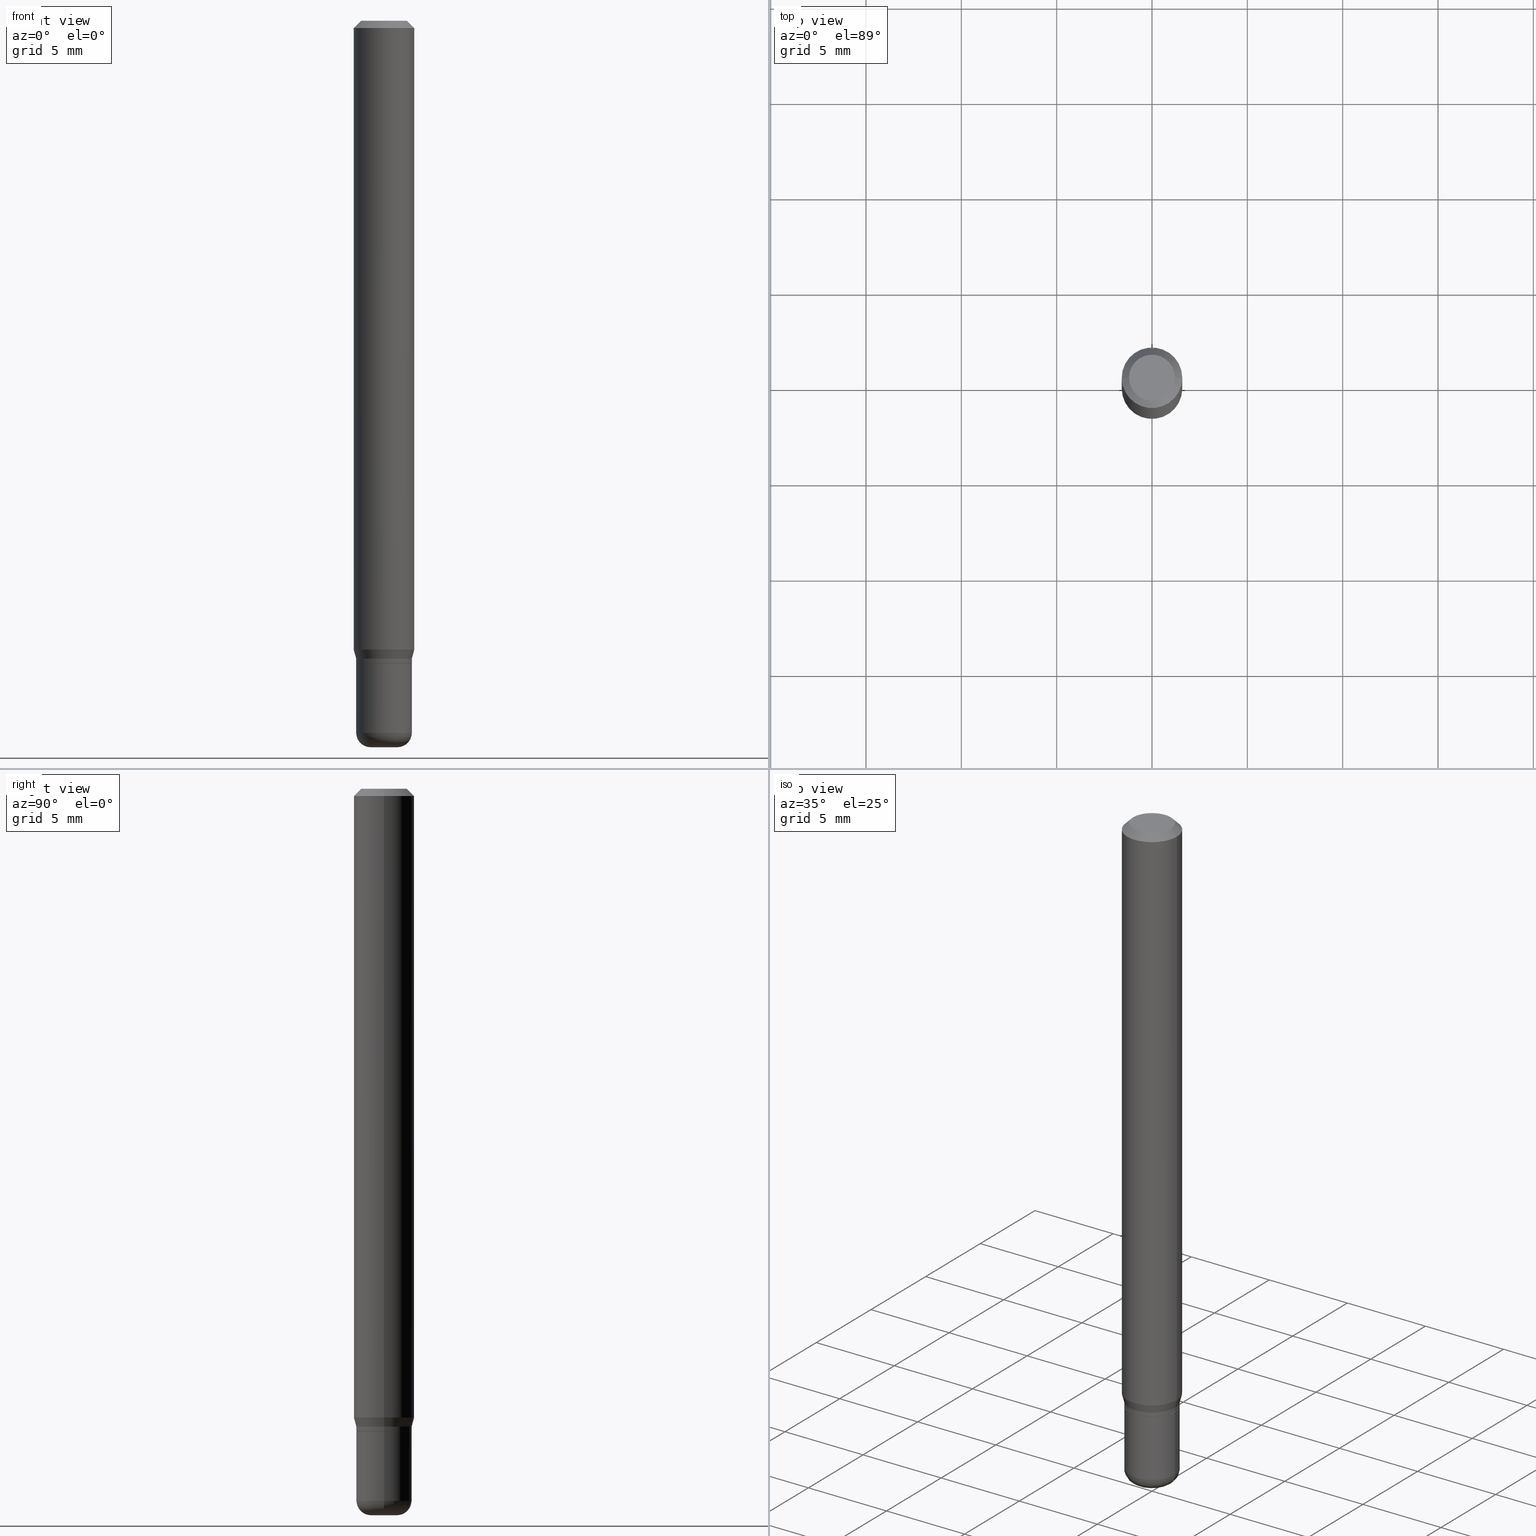
[diagram: canonical four-view strip — front | top / right | iso, engineering-drawing reading convention]
A machine part, canonical four-view strip (front | top / right | iso — engineering-drawing reading convention). The complete STEP part file that produces these views, byte-faithful:
ISO-10303-21;
HEADER;
FILE_DESCRIPTION (( 'STEP AP203' ),
    '1' );
FILE_NAME ('09114.STEP',
    '2024-02-29T22:16:57',
    ( '' ),
    ( '' ),
    'SwSTEP 2.0',
    'SolidWorks 2023',
    '' );
FILE_SCHEMA (( 'CONFIG_CONTROL_DESIGN' ));
ENDSEC;

DATA;
#1 = ORIENTED_EDGE ( 'NONE', *, *, #362, .T. ) ;
#2 = DIRECTION ( 'NONE',  ( -2.445468806185136597E-29, 3.491481338843145583E-15, 1.000000000000000000 ) ) ;
#3 = CALENDAR_DATE ( 2024, 29, 2 ) ;
#4 = LINE ( 'NONE', #340, #284 ) ;
#5 = APPROVAL ( #351, 'UNSPECIFIED' ) ;
#6 = CONICAL_SURFACE ( 'NONE', #444, 0.06250000000000000000, 0.7853981633974488341 ) ;
#7 = EDGE_LOOP ( 'NONE', ( #383, #484, #134, #10 ) ) ;
#8 = PERSON_AND_ORGANIZATION ( #400, #135 ) ;
#9 = DIRECTION ( 'NONE',  ( -2.438088387897960049E-29, 3.491481338843145188E-15, 1.000000000000000000 ) ) ;
#10 = ORIENTED_EDGE ( 'NONE', *, *, #172, .F. ) ;
#11 = AXIS2_PLACEMENT_3D ( 'NONE', #279, #102, #274 ) ;
#12 = ADVANCED_FACE ( 'NONE', ( #344 ), #127, .T. ) ;
#13 = EDGE_CURVE ( 'NONE', #387, #313, #47, .T. ) ;
#14 = CONICAL_SURFACE ( 'NONE', #230, 0.05700000000000005757, 0.7853981633975507526 ) ;
#15 = DIRECTION ( 'NONE',  ( 1.000000000000000000, -6.982962677686274599E-15, 0.000000000000000000 ) ) ;
#16 = ADVANCED_FACE ( 'NONE', ( #124 ), #6, .T. ) ;
#17 = APPLICATION_PROTOCOL_DEFINITION ( 'international standard', 'config_control_design', 1994, #471 ) ;
#18 = DIRECTION ( 'NONE',  ( -2.445468806185136597E-29, 3.491481338843145583E-15, 1.000000000000000000 ) ) ;
#19 = DIRECTION ( 'NONE',  ( 2.445468806185136597E-29, -3.491481338843145583E-15, -1.000000000000000000 ) ) ;
#20 = ADVANCED_BREP_SHAPE_REPRESENTATION ( '09114', ( #225, #243, #501 ), #83 ) ;
#21 = VERTEX_POINT ( 'NONE', #300 ) ;
#22 = PERSON_AND_ORGANIZATION ( #400, #135 ) ;
#23 = CONICAL_SURFACE ( 'NONE', #118, 0.05750000000000008576, 0.2617993877991475760 ) ;
#24 = CONICAL_SURFACE ( 'NONE', #270, 0.05750000000000008576, 0.2617993877991475760 ) ;
#25 = CARTESIAN_POINT ( 'NONE',  ( 0.06250000000000000000, -4.811533449433669144E-16, -0.01499999999999970281 ) ) ;
#26 = EDGE_LOOP ( 'NONE', ( #138, #258, #86, #394 ) ) ;
#27 = DIRECTION ( 'NONE',  ( 1.000000000000000000, -6.982962677686276966E-15, 0.000000000000000000 ) ) ;
#28 = DIRECTION ( 'NONE',  ( 1.000000000000000000, -6.982962677686258822E-15, 4.883557194083110098E-29 ) ) ;
#29 = VERTEX_POINT ( 'NONE', #335 ) ;
#30 = DIRECTION ( 'NONE',  ( 1.000000000000000000, -6.982962677686272233E-15, 0.000000000000000000 ) ) ;
#31 = CARTESIAN_POINT ( 'NONE',  ( 0.000000000000000000, 0.000000000000000000, 0.000000000000000000 ) ) ;
#32 = EDGE_CURVE ( 'NONE', #313, #429, #454, .T. ) ;
#33 = CIRCLE ( 'NONE', #319, 0.04750000000000000749 ) ;
#34 = LINE ( 'NONE', #103, #242 ) ;
#35 = DATE_AND_TIME ( #3, #490 ) ;
#36 = VERTEX_POINT ( 'NONE', #285 ) ;
#37 = DIRECTION ( 'NONE',  ( 0.2588190451025189631, 1.565188264969641295E-15, 0.9659258262890687563 ) ) ;
#38 = ORIENTED_EDGE ( 'NONE', *, *, #482, .T. ) ;
#39 = APPROVAL_PERSON_ORGANIZATION ( #116, #237, #483 ) ;
#40 = CARTESIAN_POINT ( 'NONE',  ( 3.668203209277706016E-29, -5.237222008264719754E-15, -1.500000000000000444 ) ) ;
#41 = CLOSED_SHELL ( 'NONE', ( #178, #50, #409, #295, #447, #404 ) ) ;
#42 = DIRECTION ( 'NONE',  ( -0.7071067811866199593, 7.493145998870616062E-15, 0.7071067811864750752 ) ) ;
#43 = CARTESIAN_POINT ( 'NONE',  ( 0.000000000000000000, 0.000000000000000000, 0.000000000000000000 ) ) ;
#44 = DIRECTION ( 'NONE',  ( 1.000000000000000000, -6.982962677686266711E-15, 0.000000000000000000 ) ) ;
#45 = CARTESIAN_POINT ( 'NONE',  ( -0.05750000000000005801, 4.085620730620580191E-16, -2.828387676896573865E-30 ) ) ;
#46 = PERSON_AND_ORGANIZATION_ROLE ( 'design_supplier' ) ;
#47 = LINE ( 'NONE', #81, #220 ) ;
#48 = CARTESIAN_POINT ( 'NONE',  ( -0.06250000000000000000, -1.848661397443869877E-15, -0.01499999999999970281 ) ) ;
#49 = CIRCLE ( 'NONE', #11, 0.05750000000000000250 ) ;
#50 = ADVANCED_FACE ( 'NONE', ( #329 ), #234, .T. ) ;
#51 = ORIENTED_EDGE ( 'NONE', *, *, #208, .F. ) ;
#52 = DIRECTION ( 'NONE',  ( 2.438088387897960049E-29, -3.491481338843145188E-15, -1.000000000000000000 ) ) ;
#53 = DIRECTION ( 'NONE',  ( -2.445468806185136597E-29, 3.491481338843145583E-15, 1.000000000000000000 ) ) ;
#54 = LOCAL_TIME ( 17, 16, 57.00000000000000000, #426 ) ;
#55 = AXIS2_PLACEMENT_3D ( 'NONE', #406, #190, #30 ) ;
#56 = DIRECTION ( 'NONE',  ( -2.445468806185136597E-29, 3.491481338843145583E-15, 1.000000000000000000 ) ) ;
#57 = VERTEX_POINT ( 'NONE', #372 ) ;
#58 = PERSON_AND_ORGANIZATION ( #400, #135 ) ;
#59 = PRODUCT ( '09114', '09114', '', ( #256 ) ) ;
#60 = EDGE_LOOP ( 'NONE', ( #402, #141, #468, #263 ) ) ;
#61 = AXIS2_PLACEMENT_3D ( 'NONE', #361, #321, #148 ) ;
#62 = CARTESIAN_POINT ( 'NONE',  ( 0.05750000000000005801, -4.015203539669607599E-16, 2.803801646082666094E-30 ) ) ;
#63 = EDGE_CURVE ( 'NONE', #420, #277, #449, .T. ) ;
#64 = ORIENTED_EDGE ( 'NONE', *, *, #213, .F. ) ;
#65 = EDGE_CURVE ( 'NONE', #219, #427, #149, .T. ) ;
#66 = EDGE_LOOP ( 'NONE', ( #466, #107, #425, #463 ) ) ;
#67 = CARTESIAN_POINT ( 'NONE',  ( 3.220682417745826436E-29, -4.598280923256424205E-15, -1.317000000000000393 ) ) ;
#68 = TOROIDAL_SURFACE ( 'NONE', #61, 0.02750000000000000014, 0.03000000000000011685 ) ;
#69 = VERTEX_POINT ( 'NONE', #231 ) ;
#70 = CARTESIAN_POINT ( 'NONE',  ( -6.680649051745406845E-45, 9.538196290434862081E-31, 2.731847993664263218E-16 ) ) ;
#71 = ORIENTED_EDGE ( 'NONE', *, *, #368, .T. ) ;
#72 = DIRECTION ( 'NONE',  ( -2.445468806185136597E-29, 3.491481338843145583E-15, 1.000000000000000000 ) ) ;
#73 = DIRECTION ( 'NONE',  ( -2.445468806185136597E-29, 3.491481338843145583E-15, 1.000000000000000000 ) ) ;
#74 = VERTEX_POINT ( 'NONE', #173 ) ;
#75 = CIRCLE ( 'NONE', #180, 0.05750000000000012046 ) ;
#76 = COORDINATED_UNIVERSAL_TIME_OFFSET ( 5, 0, .BEHIND. ) ;
#77 = DIRECTION ( 'NONE',  ( 1.000000000000000000, -6.982962677686263555E-15, 0.000000000000000000 ) ) ;
#78 = DIRECTION ( 'NONE',  ( -2.445468806185136597E-29, 3.491481338843145583E-15, 1.000000000000000000 ) ) ;
#79 =( LENGTH_UNIT ( ) NAMED_UNIT ( * ) SI_UNIT ( $, .METRE. ) );
#80 = CARTESIAN_POINT ( 'NONE',  ( 3.175049348580787854E-29, -4.533128994505219090E-15, -1.298339745962156178 ) ) ;
#81 = CARTESIAN_POINT ( 'NONE',  ( 0.05700000000000005757, -5.031224609272972078E-15, -1.327000000000000179 ) ) ;
#82 = CARTESIAN_POINT ( 'NONE',  ( 0.06250000000000000000, -4.969564161860609971E-15, -1.298339745962156178 ) ) ;
#83 =( GEOMETRIC_REPRESENTATION_CONTEXT ( 3 ) GLOBAL_UNCERTAINTY_ASSIGNED_CONTEXT ( ( #416 ) ) GLOBAL_UNIT_ASSIGNED_CONTEXT ( ( #122, #336, #410 ) ) REPRESENTATION_CONTEXT ( 'NONE', 'WORKASPACE' ) );
#84 = CC_DESIGN_DATE_AND_TIME_ASSIGNMENT ( #437, #269, ( #287 ) ) ;
#85 = PERSON_AND_ORGANIZATION ( #400, #135 ) ;
#86 = ORIENTED_EDGE ( 'NONE', *, *, #32, .F. ) ;
#87 = CARTESIAN_POINT ( 'NONE',  ( 4.015203539669927580E-16, 0.05749999999999536732, -1.327000000000000401 ) ) ;
#88 = DIRECTION ( 'NONE',  ( 0.7071067811866199593, -2.468850131083015945E-15, 0.7071067811864750752 ) ) ;
#89 = FACE_OUTER_BOUND ( 'NONE', #147, .T. ) ;
#90 = CARTESIAN_POINT ( 'NONE',  ( 3.245137105807676860E-29, -4.633195736644854276E-15, -1.327000000000000179 ) ) ;
#91 = EDGE_CURVE ( 'NONE', #249, #104, #49, .T. ) ;
#92 = ORIENTED_EDGE ( 'NONE', *, *, #339, .T. ) ;
#93 = LOCAL_TIME ( 17, 16, 57.00000000000000000, #232 ) ;
#94 = DIRECTION ( 'NONE',  ( 1.000000000000000000, -6.982962677686265922E-15, 4.876176775795935793E-29 ) ) ;
#95 = FACE_OUTER_BOUND ( 'NONE', #417, .T. ) ;
#96 = ORIENTED_EDGE ( 'NONE', *, *, #390, .F. ) ;
#97 = EDGE_LOOP ( 'NONE', ( #369, #268, #312, #221 ) ) ;
#98 = EDGE_CURVE ( 'NONE', #21, #74, #414, .T. ) ;
#99 = EDGE_LOOP ( 'NONE', ( #108, #71, #261, #334 ) ) ;
#100 = LOCAL_TIME ( 17, 16, 57.00000000000000000, #251 ) ;
#101 = CIRCLE ( 'NONE', #514, 0.06250000000000000000 ) ;
#102 = DIRECTION ( 'NONE',  ( -2.445468806185136597E-29, 3.491481338843145583E-15, 1.000000000000000000 ) ) ;
#103 = CARTESIAN_POINT ( 'NONE',  ( -0.05750000000000008576, -4.189718850194366629E-15, -1.317000000000000393 ) ) ;
#104 = VERTEX_POINT ( 'NONE', #456 ) ;
#105 = CARTESIAN_POINT ( 'NONE',  ( 3.243914371404584059E-29, -4.631449995975432773E-15, -1.326500000000000234 ) ) ;
#106 = DIRECTION ( 'NONE',  ( 1.000000000000000000, -6.982962677686266711E-15, 4.852736867747365086E-29 ) ) ;
#107 = ORIENTED_EDGE ( 'NONE', *, *, #391, .T. ) ;
#108 = ORIENTED_EDGE ( 'NONE', *, *, #278, .F. ) ;
#109 = AXIS2_PLACEMENT_3D ( 'NONE', #105, #194, #112 ) ;
#110 = CARTESIAN_POINT ( 'NONE',  ( 0.05700000000000005757, -5.031224609272972078E-15, -1.327000000000000179 ) ) ;
#111 = AXIS2_PLACEMENT_3D ( 'NONE', #435, #78, #491 ) ;
#112 = DIRECTION ( 'NONE',  ( 1.000000000000000000, -6.982962677686266711E-15, 0.000000000000000000 ) ) ;
#113 = CARTESIAN_POINT ( 'NONE',  ( 3.245137105807676860E-29, -4.633195736644854276E-15, -1.327000000000000179 ) ) ;
#114 = DIRECTION ( 'NONE',  ( 1.000000000000000000, -6.982962677686266711E-15, 4.876176775795935793E-29 ) ) ;
#115 = ADVANCED_FACE ( 'NONE', ( #338 ), #271, .T. ) ;
#116 = PERSON_AND_ORGANIZATION ( #400, #135 ) ;
#117 = CARTESIAN_POINT ( 'NONE',  ( 3.245137105807676860E-29, -4.633195736644854276E-15, -1.327000000000000179 ) ) ;
#118 = AXIS2_PLACEMENT_3D ( 'NONE', #486, #292, #77 ) ;
#119 = DIRECTION ( 'NONE',  ( -2.445468806185136877E-29, 3.491481338843145188E-15, 1.000000000000000000 ) ) ;
#120 = FACE_OUTER_BOUND ( 'NONE', #290, .T. ) ;
#121 = ADVANCED_FACE ( 'NONE', ( #120 ), #24, .T. ) ;
#122 =( CONVERSION_BASED_UNIT ( 'INCH', #343 ) LENGTH_UNIT ( ) NAMED_UNIT ( #418 ) );
#123 = DIRECTION ( 'NONE',  ( 2.445468806185136597E-29, -3.491481338843145583E-15, -1.000000000000000000 ) ) ;
#124 = FACE_OUTER_BOUND ( 'NONE', #60, .T. ) ;
#125 = CARTESIAN_POINT ( 'NONE',  ( 3.175049348580787854E-29, -4.533128994505219090E-15, -1.298339745962156178 ) ) ;
#126 = CIRCLE ( 'NONE', #303, 0.02750000000000001055 ) ;
#127 = CONICAL_SURFACE ( 'NONE', #157, 0.06250000000000000000, 0.7853981633974488341 ) ;
#128 = APPROVAL_STATUS ( 'not_yet_approved' ) ;
#129 = CC_DESIGN_PERSON_AND_ORGANIZATION_ASSIGNMENT ( #22, #508, ( #59 ) ) ;
#130 = DIRECTION ( 'NONE',  ( 1.000000000000000000, -6.982962677686266711E-15, 0.000000000000000000 ) ) ;
#131 = ORIENTED_EDGE ( 'NONE', *, *, #98, .F. ) ;
#132 = DATE_AND_TIME ( #511, #54 ) ;
#133 = CARTESIAN_POINT ( 'NONE',  ( -0.05750000000000007189, 4.085620730620581177E-16, -2.828387676896574216E-30 ) ) ;
#134 = ORIENTED_EDGE ( 'NONE', *, *, #489, .F. ) ;
#135 = ORGANIZATION ( 'UNSPECIFIED', 'UNSPECIFIED', '' ) ;
#136 = VECTOR ( 'NONE', #236, 39.37007874015748143 ) ;
#137 = CARTESIAN_POINT ( 'NONE',  ( 0.000000000000000000, 0.000000000000000000, 0.000000000000000000 ) ) ;
#138 = ORIENTED_EDGE ( 'NONE', *, *, #390, .T. ) ;
#139 = EDGE_CURVE ( 'NONE', #420, #57, #101, .T. ) ;
#140 = CYLINDRICAL_SURFACE ( 'NONE', #218, 0.05750000000000007189 ) ;
#141 = ORIENTED_EDGE ( 'NONE', *, *, #461, .F. ) ;
#142 = CC_DESIGN_PERSON_AND_ORGANIZATION_ASSIGNMENT ( #497, #171, ( #250 ) ) ;
#143 = PRODUCT_DEFINITION_FORMATION_WITH_SPECIFIED_SOURCE ( 'ANY', '', #59, .NOT_KNOWN. ) ;
#144 = AXIS2_PLACEMENT_3D ( 'NONE', #254, #52, #298 ) ;
#145 = FACE_OUTER_BOUND ( 'NONE', #26, .T. ) ;
#146 = EDGE_CURVE ( 'NONE', #36, #29, #465, .T. ) ;
#147 = EDGE_LOOP ( 'NONE', ( #96, #320 ) ) ;
#148 = DIRECTION ( 'NONE',  ( 1.000000000000000000, -6.982962677686258822E-15, 4.883557194083110098E-29 ) ) ;
#149 = LINE ( 'NONE', #276, #399 ) ;
#150 = DIRECTION ( 'NONE',  ( -2.445468806185136597E-29, 3.491481338843145583E-15, 1.000000000000000000 ) ) ;
#151 = CARTESIAN_POINT ( 'NONE',  ( -0.05750000000000005801, -4.222887922913375197E-15, -1.326500000000000234 ) ) ;
#152 = ORIENTED_EDGE ( 'NONE', *, *, #167, .F. ) ;
#153 = ORIENTED_EDGE ( 'NONE', *, *, #98, .T. ) ;
#154 = CARTESIAN_POINT ( 'NONE',  ( 3.668203209277632395E-31, -5.237222008264614861E-17, -0.01499999999999970281 ) ) ;
#155 = CIRCLE ( 'NONE', #389, 0.04750000000000000749 ) ;
#156 = DIRECTION ( 'NONE',  ( 1.000000000000000000, -6.982962677686276966E-15, 0.000000000000000000 ) ) ;
#157 = AXIS2_PLACEMENT_3D ( 'NONE', #169, #123, #305 ) ;
#158 = CARTESIAN_POINT ( 'NONE',  ( 0.06250000000000000000, -4.888073874380378612E-16, -0.01499999999999970281 ) ) ;
#159 = ORIENTED_EDGE ( 'NONE', *, *, #65, .F. ) ;
#160 = EDGE_CURVE ( 'NONE', #69, #36, #212, .T. ) ;
#161 = CARTESIAN_POINT ( 'NONE',  ( -0.02750000000000000014, -4.937078315765396688E-15, -1.470000000000000195 ) ) ;
#162 = ADVANCED_FACE ( 'NONE', ( #193 ), #356, .T. ) ;
#163 = DIRECTION ( 'NONE',  ( -1.000000000000000000, 7.105427357600994759E-15, 0.000000000000000000 ) ) ;
#164 = PLANE ( 'NONE',  #507 ) ;
#165 = DIRECTION ( 'NONE',  ( 1.000000000000000000, -6.982962677686265922E-15, 4.876176775795935793E-29 ) ) ;
#166 = APPROVAL_PERSON_ORGANIZATION ( #85, #382, #504 ) ;
#167 = EDGE_CURVE ( 'NONE', #427, #277, #259, .T. ) ;
#168 = VECTOR ( 'NONE', #37, 39.37007874015748854 ) ;
#169 = CARTESIAN_POINT ( 'NONE',  ( 3.668203209277632395E-31, -5.237222008264614861E-17, -0.01499999999999970281 ) ) ;
#170 = DESIGN_CONTEXT ( 'detailed design', #480, 'design' ) ;
#171 = PERSON_AND_ORGANIZATION_ROLE ( 'classification_officer' ) ;
#172 = EDGE_CURVE ( 'NONE', #29, #104, #204, .T. ) ;
#173 = CARTESIAN_POINT ( 'NONE',  ( -0.05750000000000008576, -4.139379317424761157E-15, -1.317000000000000393 ) ) ;
#174 = CC_DESIGN_SECURITY_CLASSIFICATION ( #250, ( #143 ) ) ;
#175 = CIRCLE ( 'NONE', #472, 0.05750000000000012046 ) ;
#176 = CARTESIAN_POINT ( 'NONE',  ( 3.594839145092150820E-29, -5.132477568099424807E-15, -1.470000000000000195 ) ) ;
#177 = EDGE_CURVE ( 'NONE', #29, #503, #175, .T. ) ;
#178 = ADVANCED_FACE ( 'NONE', ( #401 ), #509, .T. ) ;
#179 = EDGE_LOOP ( 'NONE', ( #448, #233, #131, #510 ) ) ;
#180 = AXIS2_PLACEMENT_3D ( 'NONE', #176, #462, #411 ) ;
#181 = ORIENTED_EDGE ( 'NONE', *, *, #224, .T. ) ;
#182 = VECTOR ( 'NONE', #42, 39.37007874015748143 ) ;
#183 = DIRECTION ( 'NONE',  ( 1.000000000000000000, -6.982962677686274599E-15, 0.000000000000000000 ) ) ;
#184 = CC_DESIGN_PERSON_AND_ORGANIZATION_ASSIGNMENT ( #8, #282, ( #287 ) ) ;
#185 = EDGE_LOOP ( 'NONE', ( #153, #436, #229, #272 ) ) ;
#186 = APPROVAL_ROLE ( '' ) ;
#187 = DIRECTION ( 'NONE',  ( 1.000000000000000000, -6.982962677686266711E-15, 4.876176775795936353E-29 ) ) ;
#188 = AXIS2_PLACEMENT_3D ( 'NONE', #113, #314, #15 ) ;
#189 = EDGE_LOOP ( 'NONE', ( #205, #370, #475, #350 ) ) ;
#190 = DIRECTION ( 'NONE',  ( -6.982962677686266711E-15, -1.000000000000000000, 3.491481338843145583E-15 ) ) ;
#191 = CLOSED_SHELL ( 'NONE', ( #374, #201, #12, #458, #302, #121, #316, #16, #217, #397, #162, #115 ) ) ;
#192 = DIRECTION ( 'NONE',  ( -2.445468806185136877E-29, 3.491481338843145188E-15, 1.000000000000000000 ) ) ;
#193 = FACE_OUTER_BOUND ( 'NONE', #99, .T. ) ;
#194 = DIRECTION ( 'NONE',  ( -2.445468806185136597E-29, 3.491481338843145583E-15, 1.000000000000000000 ) ) ;
#195 = EDGE_LOOP ( 'NONE', ( #64, #92, #1, #159 ) ) ;
#196 = ORIENTED_EDGE ( 'NONE', *, *, #428, .T. ) ;
#197 = AXIS2_PLACEMENT_3D ( 'NONE', #90, #214, #183 ) ;
#198 = AXIS2_PLACEMENT_3D ( 'NONE', #31, #2, #114 ) ;
#199 = LINE ( 'NONE', #296, #168 ) ;
#200 = DIRECTION ( 'NONE',  ( -2.445468806185136597E-29, 3.491481338843145583E-15, 1.000000000000000000 ) ) ;
#201 = ADVANCED_FACE ( 'NONE', ( #145 ), #14, .T. ) ;
#202 = DIRECTION ( 'NONE',  ( 1.000000000000000000, -6.982962677686263555E-15, 0.000000000000000000 ) ) ;
#203 = FACE_OUTER_BOUND ( 'NONE', #324, .T. ) ;
#204 = LINE ( 'NONE', #62, #500 ) ;
#205 = ORIENTED_EDGE ( 'NONE', *, *, #235, .F. ) ;
#206 = CARTESIAN_POINT ( 'NONE',  ( 3.668203209277632395E-31, -5.237222008264614861E-17, -0.01499999999999970281 ) ) ;
#207 = DATE_TIME_ROLE ( 'classification_date' ) ;
#208 = EDGE_CURVE ( 'NONE', #74, #57, #34, .T. ) ;
#209 = ORIENTED_EDGE ( 'NONE', *, *, #380, .F. ) ;
#210 = CIRCLE ( 'NONE', #188, 0.05700000000000005757 ) ;
#211 = LINE ( 'NONE', #25, #308 ) ;
#212 = CIRCLE ( 'NONE', #364, 0.02750000000000001055 ) ;
#213 = EDGE_CURVE ( 'NONE', #505, #219, #33, .T. ) ;
#214 = DIRECTION ( 'NONE',  ( -2.445468806185136597E-29, 3.491481338843145583E-15, 1.000000000000000000 ) ) ;
#215 = ORIENTED_EDGE ( 'NONE', *, *, #146, .F. ) ;
#216 = PERSON_AND_ORGANIZATION_ROLE ( 'creator' ) ;
#217 = ADVANCED_FACE ( 'NONE', ( #413 ), #415, .F. ) ;
#218 = AXIS2_PLACEMENT_3D ( 'NONE', #432, #56, #478 ) ;
#219 = VERTEX_POINT ( 'NONE', #495 ) ;
#220 = VECTOR ( 'NONE', #88, 39.37007874015748143 ) ;
#221 = ORIENTED_EDGE ( 'NONE', *, *, #63, .F. ) ;
#222 = DIRECTION ( 'NONE',  ( -2.445468806185136597E-29, 3.491481338843145583E-15, 1.000000000000000000 ) ) ;
#223 = VERTEX_POINT ( 'NONE', #248 ) ;
#224 = EDGE_CURVE ( 'NONE', #21, #420, #199, .T. ) ;
#225 = MANIFOLD_SOLID_BREP ( 'Body-Move/Copy2[1]', #41 ) ;
#226 = DIRECTION ( 'NONE',  ( -2.445468806185136597E-29, 3.491481338843145583E-15, 1.000000000000000000 ) ) ;
#227 = DIRECTION ( 'NONE',  ( -2.445468806185136597E-29, 3.491481338843145583E-15, 1.000000000000000000 ) ) ;
#228 = AXIS2_PLACEMENT_3D ( 'NONE', #376, #9, #165 ) ;
#229 = ORIENTED_EDGE ( 'NONE', *, *, #139, .F. ) ;
#230 = AXIS2_PLACEMENT_3D ( 'NONE', #322, #474, #281 ) ;
#231 = CARTESIAN_POINT ( 'NONE',  ( -0.02750000000000001055, -4.882869125484029039E-15, -1.500000000000000444 ) ) ;
#232 = COORDINATED_UNIVERSAL_TIME_OFFSET ( 5, 0, .BEHIND. ) ;
#233 = ORIENTED_EDGE ( 'NONE', *, *, #315, .T. ) ;
#234 = CYLINDRICAL_SURFACE ( 'NONE', #347, 0.05750000000000005801 ) ;
#235 = EDGE_CURVE ( 'NONE', #69, #503, #310, .T. ) ;
#236 = DIRECTION ( 'NONE',  ( -2.445468806185136877E-29, 3.491481338843145188E-15, 1.000000000000000000 ) ) ;
#237 = APPROVAL ( #450, 'UNSPECIFIED' ) ;
#238 = APPROVAL_DATE_TIME ( #398, #237 ) ;
#239 = DIRECTION ( 'NONE',  ( 1.000000000000000000, -6.982962677686266711E-15, 4.876176775795936353E-29 ) ) ;
#240 = DIRECTION ( 'NONE',  ( 1.000000000000000000, -6.982962677686263555E-15, 0.000000000000000000 ) ) ;
#241 = AXIS2_PLACEMENT_3D ( 'NONE', #125, #264, #359 ) ;
#242 = VECTOR ( 'NONE', #326, 39.37007874015748854 ) ;
#243 = MANIFOLD_SOLID_BREP ( 'Body-Move/Copy2[2]', #191 ) ;
#244 = CARTESIAN_POINT ( 'NONE',  ( 3.220682417745826436E-29, -4.598280923256424205E-15, -1.317000000000000393 ) ) ;
#245 = DIRECTION ( 'NONE',  ( -2.445468806185136597E-29, 3.491481338843145583E-15, 1.000000000000000000 ) ) ;
#246 = LINE ( 'NONE', #455, #182 ) ;
#247 = DIRECTION ( 'NONE',  ( -1.000000000000000000, 6.982962677686266711E-15, 0.000000000000000000 ) ) ;
#248 = CARTESIAN_POINT ( 'NONE',  ( -0.05700000000000005757, -4.225537150087485609E-15, -1.327000000000000179 ) ) ;
#249 = VERTEX_POINT ( 'NONE', #446 ) ;
#250 = SECURITY_CLASSIFICATION ( '', '', #498 ) ;
#251 = COORDINATED_UNIVERSAL_TIME_OFFSET ( 5, 0, .BEHIND. ) ;
#252 = EDGE_CURVE ( 'NONE', #313, #21, #451, .T. ) ;
#253 = DATE_AND_TIME ( #304, #100 ) ;
#254 = CARTESIAN_POINT ( 'NONE',  ( 3.316907271900976589E-16, 0.04750000000000000749, -2.925296391183627249E-17 ) ) ;
#255 = PLANE ( 'NONE',  #228 ) ;
#256 = MECHANICAL_CONTEXT ( 'NONE', #471, 'mechanical' ) ;
#257 = VECTOR ( 'NONE', #375, 39.37007874015748143 ) ;
#258 = ORIENTED_EDGE ( 'NONE', *, *, #278, .T. ) ;
#259 = CIRCLE ( 'NONE', #407, 0.06250000000000000000 ) ;
#260 = CALENDAR_DATE ( 2024, 29, 2 ) ;
#261 = ORIENTED_EDGE ( 'NONE', *, *, #13, .T. ) ;
#262 = DIRECTION ( 'NONE',  ( 1.000000000000000000, 0.000000000000000000, 0.000000000000000000 ) ) ;
#263 = ORIENTED_EDGE ( 'NONE', *, *, #167, .T. ) ;
#264 = DIRECTION ( 'NONE',  ( -2.445468806185136597E-29, 3.491481338843145583E-15, 1.000000000000000000 ) ) ;
#265 = LINE ( 'NONE', #133, #459 ) ;
#266 = EDGE_CURVE ( 'NONE', #57, #427, #4, .T. ) ;
#267 = AXIS2_PLACEMENT_3D ( 'NONE', #291, #288, #275 ) ;
#268 = ORIENTED_EDGE ( 'NONE', *, *, #266, .T. ) ;
#269 = DATE_TIME_ROLE ( 'creation_date' ) ;
#270 = AXIS2_PLACEMENT_3D ( 'NONE', #67, #200, #487 ) ;
#271 = CYLINDRICAL_SURFACE ( 'NONE', #111, 0.05750000000000007189 ) ;
#272 = ORIENTED_EDGE ( 'NONE', *, *, #224, .F. ) ;
#273 = ORIENTED_EDGE ( 'NONE', *, *, #306, .F. ) ;
#274 = DIRECTION ( 'NONE',  ( 1.000000000000000000, -6.982962677686273810E-15, 0.000000000000000000 ) ) ;
#275 = DIRECTION ( 'NONE',  ( 1.000000000000000000, -6.982962677686273810E-15, 0.000000000000000000 ) ) ;
#276 = CARTESIAN_POINT ( 'NONE',  ( -0.06250000000000000000, 3.840629472727455270E-16, -0.01499999999999970281 ) ) ;
#277 = VERTEX_POINT ( 'NONE', #158 ) ;
#278 = EDGE_CURVE ( 'NONE', #223, #429, #246, .T. ) ;
#279 = CARTESIAN_POINT ( 'NONE',  ( 3.245137105807676860E-29, -4.633195736644854276E-15, -1.327000000000000179 ) ) ;
#280 = CARTESIAN_POINT ( 'NONE',  ( 3.243914371404584059E-29, -4.631449995975432773E-15, -1.326500000000000234 ) ) ;
#281 = DIRECTION ( 'NONE',  ( 1.000000000000000000, -6.982962677686274599E-15, 0.000000000000000000 ) ) ;
#282 = PERSON_AND_ORGANIZATION_ROLE ( 'creator' ) ;
#283 = EDGE_LOOP ( 'NONE', ( #470, #385, #395, #215 ) ) ;
#284 = VECTOR ( 'NONE', #119, 39.37007874015748143 ) ;
#285 = CARTESIAN_POINT ( 'NONE',  ( 0.02750000000000001055, -5.429253481901092247E-15, -1.500000000000000444 ) ) ;
#286 = DIRECTION ( 'NONE',  ( 7.105427357601001859E-15, 1.000000000000000000, -3.491481338843145583E-15 ) ) ;
#287 = PRODUCT_DEFINITION ( 'UNKNOWN', '', #143, #170 ) ;
#288 = DIRECTION ( 'NONE',  ( -2.445468806185136597E-29, 3.491481338843145583E-15, 1.000000000000000000 ) ) ;
#289 = CYLINDRICAL_SURFACE ( 'NONE', #318, 0.05750000000000005801 ) ;
#290 = EDGE_LOOP ( 'NONE', ( #51, #492, #181, #381 ) ) ;
#291 = CARTESIAN_POINT ( 'NONE',  ( 3.245137105807676860E-29, -4.633195736644854276E-15, -1.327000000000000179 ) ) ;
#292 = DIRECTION ( 'NONE',  ( -2.445468806185136597E-29, 3.491481338843145583E-15, 1.000000000000000000 ) ) ;
#293 = CARTESIAN_POINT ( 'NONE',  ( 3.668203209277706016E-29, -5.237222008264719754E-15, -1.500000000000000444 ) ) ;
#294 = AXIS2_PLACEMENT_3D ( 'NONE', #280, #485, #473 ) ;
#295 = ADVANCED_FACE ( 'NONE', ( #333 ), #289, .T. ) ;
#296 = CARTESIAN_POINT ( 'NONE',  ( 0.05750000000000008576, -4.999801277223385014E-15, -1.317000000000000393 ) ) ;
#297 = CARTESIAN_POINT ( 'NONE',  ( 3.582686580359767159E-29, -5.359686688179454114E-15, -1.500000000000000444 ) ) ;
#298 = DIRECTION ( 'NONE',  ( -1.000000000000000000, 6.982962677686265922E-15, -4.876176775795935793E-29 ) ) ;
#299 = EDGE_CURVE ( 'NONE', #503, #249, #337, .T. ) ;
#300 = CARTESIAN_POINT ( 'NONE',  ( 0.05750000000000008576, -4.999801277223385014E-15, -1.317000000000000393 ) ) ;
#301 = CARTESIAN_POINT ( 'NONE',  ( -0.05750000000000012046, -4.474274579310080389E-15, -1.470000000000000195 ) ) ;
#302 = ADVANCED_FACE ( 'NONE', ( #405 ), #23, .T. ) ;
#303 = AXIS2_PLACEMENT_3D ( 'NONE', #40, #227, #156 ) ;
#304 = CALENDAR_DATE ( 2024, 29, 2 ) ;
#305 = DIRECTION ( 'NONE',  ( -1.000000000000000000, 6.982962677686266711E-15, 0.000000000000000000 ) ) ;
#306 = EDGE_CURVE ( 'NONE', #74, #21, #452, .T. ) ;
#307 = APPROVAL_DATE_TIME ( #132, #5 ) ;
#308 = VECTOR ( 'NONE', #311, 39.37007874015748143 ) ;
#309 = EDGE_LOOP ( 'NONE', ( #365, #38, #502, #273 ) ) ;
#310 = CIRCLE ( 'NONE', #379, 0.03000000000000012032 ) ;
#311 = DIRECTION ( 'NONE',  ( 0.7071067811865479058, -7.319954787623257623E-15, -0.7071067811865471286 ) ) ;
#312 = ORIENTED_EDGE ( 'NONE', *, *, #362, .F. ) ;
#313 = VERTEX_POINT ( 'NONE', #424 ) ;
#314 = DIRECTION ( 'NONE',  ( -2.445468806185136597E-29, 3.491481338843145583E-15, 1.000000000000000000 ) ) ;
#315 = EDGE_CURVE ( 'NONE', #429, #74, #265, .T. ) ;
#316 = ADVANCED_FACE ( 'NONE', ( #95 ), #355, .T. ) ;
#317 = DIRECTION ( 'NONE',  ( -2.445468806185136597E-29, 3.491481338843145583E-15, 1.000000000000000000 ) ) ;
#318 = AXIS2_PLACEMENT_3D ( 'NONE', #43, #73, #239 ) ;
#319 = AXIS2_PLACEMENT_3D ( 'NONE', #440, #476, #106 ) ;
#320 = ORIENTED_EDGE ( 'NONE', *, *, #368, .F. ) ;
#321 = DIRECTION ( 'NONE',  ( -2.445468806185136597E-29, 3.491481338843145583E-15, 1.000000000000000000 ) ) ;
#322 = CARTESIAN_POINT ( 'NONE',  ( 3.245137105807676860E-29, -4.633195736644854276E-15, -1.327000000000000179 ) ) ;
#323 = CALENDAR_DATE ( 2024, 29, 2 ) ;
#324 = EDGE_LOOP ( 'NONE', ( #358, #392 ) ) ;
#325 = DIRECTION ( 'NONE',  ( 1.000000000000000000, -6.982962677686266711E-15, 4.852736867747365086E-29 ) ) ;
#326 = DIRECTION ( 'NONE',  ( -0.2588190451025189631, 5.211531920934535265E-15, 0.9659258262890687563 ) ) ;
#327 = APPLICATION_PROTOCOL_DEFINITION ( 'international standard', 'config_control_design', 1994, #480 ) ;
#328 = FACE_OUTER_BOUND ( 'NONE', #189, .T. ) ;
#329 = FACE_OUTER_BOUND ( 'NONE', #7, .T. ) ;
#330 = APPROVAL_DATE_TIME ( #35, #382 ) ;
#331 = CC_DESIGN_APPROVAL ( #382, ( #250 ) ) ;
#332 = AXIS2_PLACEMENT_3D ( 'NONE', #393, #150, #28 ) ;
#333 = FACE_OUTER_BOUND ( 'NONE', #66, .T. ) ;
#334 = ORIENTED_EDGE ( 'NONE', *, *, #482, .F. ) ;
#335 = CARTESIAN_POINT ( 'NONE',  ( 0.05750000000000012046, -5.533997922066385616E-15, -1.470000000000000195 ) ) ;
#336 =( NAMED_UNIT ( * ) PLANE_ANGLE_UNIT ( ) SI_UNIT ( $, .RADIAN. ) );
#337 = LINE ( 'NONE', #45, #257 ) ;
#338 = FACE_OUTER_BOUND ( 'NONE', #309, .T. ) ;
#339 = EDGE_CURVE ( 'NONE', #505, #277, #211, .T. ) ;
#340 = CARTESIAN_POINT ( 'NONE',  ( -0.06250000000000000000, 4.440892098500626162E-16, -3.074334431409316114E-30 ) ) ;
#341 = CIRCLE ( 'NONE', #109, 0.05750000000000005801 ) ;
#342 = FACE_OUTER_BOUND ( 'NONE', #516, .T. ) ;
#343 = LENGTH_MEASURE_WITH_UNIT ( LENGTH_MEASURE( 0.02539999999999999897 ), #79 );
#344 = FACE_OUTER_BOUND ( 'NONE', #195, .T. ) ;
#345 = CC_DESIGN_PERSON_AND_ORGANIZATION_ASSIGNMENT ( #58, #216, ( #143 ) ) ;
#346 = APPROVAL_PERSON_ORGANIZATION ( #388, #5, #186 ) ;
#347 = AXIS2_PLACEMENT_3D ( 'NONE', #403, #72, #187 ) ;
#348 = ORIENTED_EDGE ( 'NONE', *, *, #266, .F. ) ;
#349 = DIRECTION ( 'NONE',  ( 1.000000000000000000, -6.982962677686266711E-15, 4.876176775795935793E-29 ) ) ;
#350 = ORIENTED_EDGE ( 'NONE', *, *, #391, .F. ) ;
#351 = APPROVAL_STATUS ( 'not_yet_approved' ) ;
#352 = CARTESIAN_POINT ( 'NONE',  ( 0.000000000000000000, 0.000000000000000000, 0.000000000000000000 ) ) ;
#353 = ORIENTED_EDGE ( 'NONE', *, *, #63, .T. ) ;
#354 = CC_DESIGN_APPROVAL ( #5, ( #143 ) ) ;
#355 = CYLINDRICAL_SURFACE ( 'NONE', #371, 0.06250000000000000000 ) ;
#356 = CONICAL_SURFACE ( 'NONE', #423, 0.05700000000000005757, 0.7853981633975507526 ) ;
#357 = FACE_OUTER_BOUND ( 'NONE', #179, .T. ) ;
#358 = ORIENTED_EDGE ( 'NONE', *, *, #489, .T. ) ;
#359 = DIRECTION ( 'NONE',  ( 1.000000000000000000, -6.982962677686262766E-15, 0.000000000000000000 ) ) ;
#360 = CARTESIAN_POINT ( 'NONE',  ( 3.594839145092150820E-29, -5.132477568099424807E-15, -1.470000000000000195 ) ) ;
#361 = CARTESIAN_POINT ( 'NONE',  ( 3.594839145092150820E-29, -5.132477568099424807E-15, -1.470000000000000195 ) ) ;
#362 = EDGE_CURVE ( 'NONE', #277, #427, #512, .T. ) ;
#363 = AXIS2_PLACEMENT_3D ( 'NONE', #244, #408, #202 ) ;
#364 = AXIS2_PLACEMENT_3D ( 'NONE', #293, #453, #27 ) ;
#365 = ORIENTED_EDGE ( 'NONE', *, *, #315, .F. ) ;
#366 = DIRECTION ( 'NONE',  ( -2.445468806185136597E-29, 3.491481338843145583E-15, 1.000000000000000000 ) ) ;
#367 = DIRECTION ( 'NONE',  ( 1.000000000000000000, -6.982962677686274599E-15, 0.000000000000000000 ) ) ;
#368 = EDGE_CURVE ( 'NONE', #223, #387, #421, .T. ) ;
#369 = ORIENTED_EDGE ( 'NONE', *, *, #139, .T. ) ;
#370 = ORIENTED_EDGE ( 'NONE', *, *, #160, .T. ) ;
#371 = AXIS2_PLACEMENT_3D ( 'NONE', #137, #53, #349 ) ;
#372 = CARTESIAN_POINT ( 'NONE',  ( -0.06250000000000000000, -4.089039784655156474E-15, -1.298339745962156178 ) ) ;
#373 = DIRECTION ( 'NONE',  ( -2.445468806185136597E-29, 3.491481338843145583E-15, 1.000000000000000000 ) ) ;
#374 = ADVANCED_FACE ( 'NONE', ( #357 ), #140, .T. ) ;
#375 = DIRECTION ( 'NONE',  ( -2.445468806185136877E-29, 3.491481338843145188E-15, 1.000000000000000000 ) ) ;
#376 = CARTESIAN_POINT ( 'NONE',  ( 3.245137105807676860E-29, -4.633195736644854276E-15, -1.327000000000000179 ) ) ;
#377 = CARTESIAN_POINT ( 'NONE',  ( 0.05750000000000007189, -4.015203539669608092E-16, 2.803801646082666444E-30 ) ) ;
#378 = DIRECTION ( 'NONE',  ( -1.000000000000000000, 6.982962677686265922E-15, -4.876176775795935793E-29 ) ) ;
#379 = AXIS2_PLACEMENT_3D ( 'NONE', #161, #286, #163 ) ;
#380 = EDGE_CURVE ( 'NONE', #36, #69, #126, .T. ) ;
#381 = ORIENTED_EDGE ( 'NONE', *, *, #428, .F. ) ;
#382 = APPROVAL ( #128, 'UNSPECIFIED' ) ;
#383 = ORIENTED_EDGE ( 'NONE', *, *, #177, .T. ) ;
#384 = CC_DESIGN_APPROVAL ( #237, ( #287 ) ) ;
#385 = ORIENTED_EDGE ( 'NONE', *, *, #235, .T. ) ;
#386 = PERSON_AND_ORGANIZATION ( #400, #135 ) ;
#387 = VERTEX_POINT ( 'NONE', #110 ) ;
#388 = PERSON_AND_ORGANIZATION ( #400, #135 ) ;
#389 = AXIS2_PLACEMENT_3D ( 'NONE', #70, #366, #325 ) ;
#390 = EDGE_CURVE ( 'NONE', #387, #223, #210, .T. ) ;
#391 = EDGE_CURVE ( 'NONE', #503, #29, #75, .T. ) ;
#392 = ORIENTED_EDGE ( 'NONE', *, *, #91, .T. ) ;
#393 = CARTESIAN_POINT ( 'NONE',  ( 3.594839145092150820E-29, -5.132477568099424807E-15, -1.470000000000000195 ) ) ;
#394 = ORIENTED_EDGE ( 'NONE', *, *, #13, .F. ) ;
#395 = ORIENTED_EDGE ( 'NONE', *, *, #177, .F. ) ;
#396 = DIRECTION ( 'NONE',  ( 1.000000000000000000, -6.982962677686262766E-15, 0.000000000000000000 ) ) ;
#397 = ADVANCED_FACE ( 'NONE', ( #89 ), #255, .F. ) ;
#398 = DATE_AND_TIME ( #323, #442 ) ;
#399 = VECTOR ( 'NONE', #439, 39.37007874015748143 ) ;
#400 = PERSON ( 'UNSPECIFIED', 'UNSPECIFIED', 'UNSPECIFIED', ('UNSPECIFIED'), ('UNSPECIFIED'), ('UNSPECIFIED') ) ;
#401 = FACE_OUTER_BOUND ( 'NONE', #283, .T. ) ;
#402 = ORIENTED_EDGE ( 'NONE', *, *, #339, .F. ) ;
#403 = CARTESIAN_POINT ( 'NONE',  ( 0.000000000000000000, 0.000000000000000000, 0.000000000000000000 ) ) ;
#404 = ADVANCED_FACE ( 'NONE', ( #342 ), #496, .F. ) ;
#405 = FACE_OUTER_BOUND ( 'NONE', #185, .T. ) ;
#406 = CARTESIAN_POINT ( 'NONE',  ( 0.02750000000000000014, -5.324509041735797299E-15, -1.470000000000000195 ) ) ;
#407 = AXIS2_PLACEMENT_3D ( 'NONE', #154, #245, #44 ) ;
#408 = DIRECTION ( 'NONE',  ( -2.445468806185136597E-29, 3.491481338843145583E-15, 1.000000000000000000 ) ) ;
#409 = ADVANCED_FACE ( 'NONE', ( #203 ), #164, .F. ) ;
#410 =( NAMED_UNIT ( * ) SI_UNIT ( $, .STERADIAN. ) SOLID_ANGLE_UNIT ( ) );
#411 = DIRECTION ( 'NONE',  ( 1.000000000000000000, -6.982962677686259611E-15, 0.000000000000000000 ) ) ;
#412 = AXIS2_PLACEMENT_3D ( 'NONE', #467, #18, #130 ) ;
#413 = FACE_OUTER_BOUND ( 'NONE', #517, .T. ) ;
#414 = CIRCLE ( 'NONE', #434, 0.05750000000000008576 ) ;
#415 = PLANE ( 'NONE',  #144 ) ;
#416 = UNCERTAINTY_MEASURE_WITH_UNIT (LENGTH_MEASURE( 1.000000000000000082E-05 ), #122, 'distance_accuracy_value', 'NONE');
#417 = EDGE_LOOP ( 'NONE', ( #348, #196, #353, #152 ) ) ;
#418 = DIMENSIONAL_EXPONENTS ( 1.000000000000000000, 0.000000000000000000, 0.000000000000000000, 0.000000000000000000, 0.000000000000000000, 0.000000000000000000, 0.000000000000000000 ) ;
#419 = DIRECTION ( 'NONE',  ( -2.445468806185136877E-29, 3.491481338843145188E-15, 1.000000000000000000 ) ) ;
#420 = VERTEX_POINT ( 'NONE', #82 ) ;
#421 = CIRCLE ( 'NONE', #197, 0.05700000000000005757 ) ;
#422 = DIRECTION ( 'NONE',  ( 0.000000000000000000, 0.000000000000000000, 1.000000000000000000 ) ) ;
#423 = AXIS2_PLACEMENT_3D ( 'NONE', #117, #222, #367 ) ;
#424 = CARTESIAN_POINT ( 'NONE',  ( 0.05750000000000005801, -5.032970349942394371E-15, -1.326500000000000234 ) ) ;
#425 = ORIENTED_EDGE ( 'NONE', *, *, #172, .T. ) ;
#426 = COORDINATED_UNIVERSAL_TIME_OFFSET ( 5, 0, .BEHIND. ) ;
#427 = VERTEX_POINT ( 'NONE', #48 ) ;
#428 = EDGE_CURVE ( 'NONE', #57, #420, #499, .T. ) ;
#429 = VERTEX_POINT ( 'NONE', #151 ) ;
#430 = CC_DESIGN_PERSON_AND_ORGANIZATION_ASSIGNMENT ( #386, #46, ( #143 ) ) ;
#431 = CIRCLE ( 'NONE', #267, 0.05750000000000000250 ) ;
#432 = CARTESIAN_POINT ( 'NONE',  ( 0.000000000000000000, 0.000000000000000000, 0.000000000000000000 ) ) ;
#433 = ORIENTED_EDGE ( 'NONE', *, *, #213, .T. ) ;
#434 = AXIS2_PLACEMENT_3D ( 'NONE', #438, #373, #240 ) ;
#435 = CARTESIAN_POINT ( 'NONE',  ( 0.000000000000000000, 0.000000000000000000, 0.000000000000000000 ) ) ;
#436 = ORIENTED_EDGE ( 'NONE', *, *, #208, .T. ) ;
#437 = DATE_AND_TIME ( #260, #93 ) ;
#438 = CARTESIAN_POINT ( 'NONE',  ( 3.220682417745826436E-29, -4.598280923256424205E-15, -1.317000000000000393 ) ) ;
#439 = DIRECTION ( 'NONE',  ( -0.7071067811865479058, 2.468850131082261005E-15, -0.7071067811865471286 ) ) ;
#440 = CARTESIAN_POINT ( 'NONE',  ( -6.680649051745406845E-45, 9.538196290434862081E-31, 2.731847993664263218E-16 ) ) ;
#441 = DIRECTION ( 'NONE',  ( 1.000000000000000000, -6.982962677686259611E-15, 0.000000000000000000 ) ) ;
#442 = LOCAL_TIME ( 17, 16, 57.00000000000000000, #76 ) ;
#443 = COORDINATED_UNIVERSAL_TIME_OFFSET ( 5, 0, .BEHIND. ) ;
#444 = AXIS2_PLACEMENT_3D ( 'NONE', #206, #19, #247 ) ;
#445 = FACE_OUTER_BOUND ( 'NONE', #97, .T. ) ;
#446 = CARTESIAN_POINT ( 'NONE',  ( -0.05750000000000000250, -4.474274579310081177E-15, -1.327000000000000179 ) ) ;
#447 = ADVANCED_FACE ( 'NONE', ( #328 ), #68, .T. ) ;
#448 = ORIENTED_EDGE ( 'NONE', *, *, #32, .T. ) ;
#449 = LINE ( 'NONE', #513, #493 ) ;
#450 = APPROVAL_STATUS ( 'not_yet_approved' ) ;
#451 = LINE ( 'NONE', #377, #136 ) ;
#452 = CIRCLE ( 'NONE', #363, 0.05750000000000008576 ) ;
#453 = DIRECTION ( 'NONE',  ( -2.445468806185136597E-29, 3.491481338843145583E-15, 1.000000000000000000 ) ) ;
#454 = CIRCLE ( 'NONE', #294, 0.05750000000000005801 ) ;
#455 = CARTESIAN_POINT ( 'NONE',  ( -0.05700000000000005757, -4.228186377261596810E-15, -1.327000000000000179 ) ) ;
#456 = CARTESIAN_POINT ( 'NONE',  ( 0.05750000000000000250, -5.034716090611815085E-15, -1.327000000000000179 ) ) ;
#457 = DIRECTION ( 'NONE',  ( 2.438088387897960049E-29, -3.491481338843145188E-15, -1.000000000000000000 ) ) ;
#458 = ADVANCED_FACE ( 'NONE', ( #445 ), #481, .T. ) ;
#459 = VECTOR ( 'NONE', #419, 39.37007874015748143 ) ;
#460 = ORIENTED_EDGE ( 'NONE', *, *, #461, .T. ) ;
#461 = EDGE_CURVE ( 'NONE', #219, #505, #155, .T. ) ;
#462 = DIRECTION ( 'NONE',  ( -2.445468806185136597E-29, 3.491481338843145583E-15, 1.000000000000000000 ) ) ;
#463 = ORIENTED_EDGE ( 'NONE', *, *, #91, .F. ) ;
#464 = DIRECTION ( 'NONE',  ( -2.438088387897960049E-29, 3.491481338843145188E-15, 1.000000000000000000 ) ) ;
#465 = CIRCLE ( 'NONE', #55, 0.03000000000000012032 ) ;
#466 = ORIENTED_EDGE ( 'NONE', *, *, #299, .F. ) ;
#467 = CARTESIAN_POINT ( 'NONE',  ( 3.668203209277632395E-31, -5.237222008264614861E-17, -0.01499999999999970281 ) ) ;
#468 = ORIENTED_EDGE ( 'NONE', *, *, #65, .T. ) ;
#469 = CC_DESIGN_DATE_AND_TIME_ASSIGNMENT ( #253, #207, ( #250 ) ) ;
#470 = ORIENTED_EDGE ( 'NONE', *, *, #380, .T. ) ;
#471 = APPLICATION_CONTEXT ( 'configuration controlled 3d designs of mechanical parts and assemblies' ) ;
#472 = AXIS2_PLACEMENT_3D ( 'NONE', #360, #317, #441 ) ;
#473 = DIRECTION ( 'NONE',  ( 1.000000000000000000, -6.982962677686266711E-15, 0.000000000000000000 ) ) ;
#474 = DIRECTION ( 'NONE',  ( -2.445468806185136597E-29, 3.491481338843145583E-15, 1.000000000000000000 ) ) ;
#475 = ORIENTED_EDGE ( 'NONE', *, *, #146, .T. ) ;
#476 = DIRECTION ( 'NONE',  ( -2.445468806185136597E-29, 3.491481338843145583E-15, 1.000000000000000000 ) ) ;
#477 = AXIS2_PLACEMENT_3D ( 'NONE', #297, #464, #94 ) ;
#478 = DIRECTION ( 'NONE',  ( 1.000000000000000000, -6.982962677686265922E-15, 4.876176775795935793E-29 ) ) ;
#479 = ORIENTED_EDGE ( 'NONE', *, *, #160, .F. ) ;
#480 = APPLICATION_CONTEXT ( 'configuration controlled 3d designs of mechanical parts and assemblies' ) ;
#481 = CYLINDRICAL_SURFACE ( 'NONE', #198, 0.06250000000000000000 ) ;
#482 = EDGE_CURVE ( 'NONE', #429, #313, #341, .T. ) ;
#483 = APPROVAL_ROLE ( '' ) ;
#484 = ORIENTED_EDGE ( 'NONE', *, *, #299, .T. ) ;
#485 = DIRECTION ( 'NONE',  ( -2.445468806185136597E-29, 3.491481338843145583E-15, 1.000000000000000000 ) ) ;
#486 = CARTESIAN_POINT ( 'NONE',  ( 3.220682417745826436E-29, -4.598280923256424205E-15, -1.317000000000000393 ) ) ;
#487 = DIRECTION ( 'NONE',  ( 1.000000000000000000, -6.982962677686263555E-15, 0.000000000000000000 ) ) ;
#488 = SHAPE_DEFINITION_REPRESENTATION ( #506, #20 ) ;
#489 = EDGE_CURVE ( 'NONE', #104, #249, #431, .T. ) ;
#490 = LOCAL_TIME ( 17, 16, 57.00000000000000000, #443 ) ;
#491 = DIRECTION ( 'NONE',  ( 1.000000000000000000, -6.982962677686265922E-15, 4.876176775795935793E-29 ) ) ;
#492 = ORIENTED_EDGE ( 'NONE', *, *, #306, .T. ) ;
#493 = VECTOR ( 'NONE', #192, 39.37007874015748143 ) ;
#494 = CARTESIAN_POINT ( 'NONE',  ( 0.04750000000000000749, -4.035134999187568762E-16, 2.731847993664288856E-16 ) ) ;
#495 = CARTESIAN_POINT ( 'NONE',  ( -0.04750000000000000749, 3.578768372314221353E-16, 2.731847993664239060E-16 ) ) ;
#496 = PLANE ( 'NONE',  #477 ) ;
#497 = PERSON_AND_ORGANIZATION ( #400, #135 ) ;
#498 = SECURITY_CLASSIFICATION_LEVEL ( 'unclassified' ) ;
#499 = CIRCLE ( 'NONE', #241, 0.06250000000000000000 ) ;
#500 = VECTOR ( 'NONE', #518, 39.37007874015748143 ) ;
#501 = AXIS2_PLACEMENT_3D ( 'NONE', #352, #422, #262 ) ;
#502 = ORIENTED_EDGE ( 'NONE', *, *, #252, .T. ) ;
#503 = VERTEX_POINT ( 'NONE', #301 ) ;
#504 = APPROVAL_ROLE ( '' ) ;
#505 = VERTEX_POINT ( 'NONE', #494 ) ;
#506 = PRODUCT_DEFINITION_SHAPE ( 'NONE', 'NONE',  #287 ) ;
#507 = AXIS2_PLACEMENT_3D ( 'NONE', #87, #457, #378 ) ;
#508 = PERSON_AND_ORGANIZATION_ROLE ( 'design_owner' ) ;
#509 = TOROIDAL_SURFACE ( 'NONE', #332, 0.02750000000000000014, 0.03000000000000011685 ) ;
#510 = ORIENTED_EDGE ( 'NONE', *, *, #252, .F. ) ;
#511 = CALENDAR_DATE ( 2024, 29, 2 ) ;
#512 = CIRCLE ( 'NONE', #412, 0.06250000000000000000 ) ;
#513 = CARTESIAN_POINT ( 'NONE',  ( 0.06250000000000000000, -4.364351673553916694E-16, 3.047610484872459871E-30 ) ) ;
#514 = AXIS2_PLACEMENT_3D ( 'NONE', #80, #226, #396 ) ;
#515 = PRODUCT_RELATED_PRODUCT_CATEGORY ( 'detail', '', ( #59 ) ) ;
#516 = EDGE_LOOP ( 'NONE', ( #209, #479 ) ) ;
#517 = EDGE_LOOP ( 'NONE', ( #460, #433 ) ) ;
#518 = DIRECTION ( 'NONE',  ( -2.445468806185136877E-29, 3.491481338843145188E-15, 1.000000000000000000 ) ) ;
ENDSEC;
END-ISO-10303-21;
